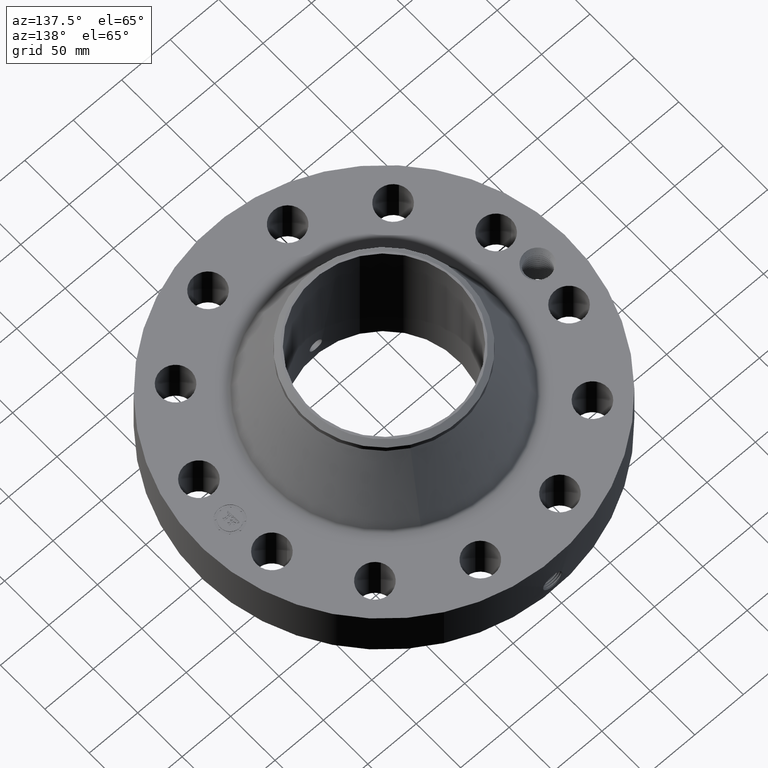
[diagram: clean part render]
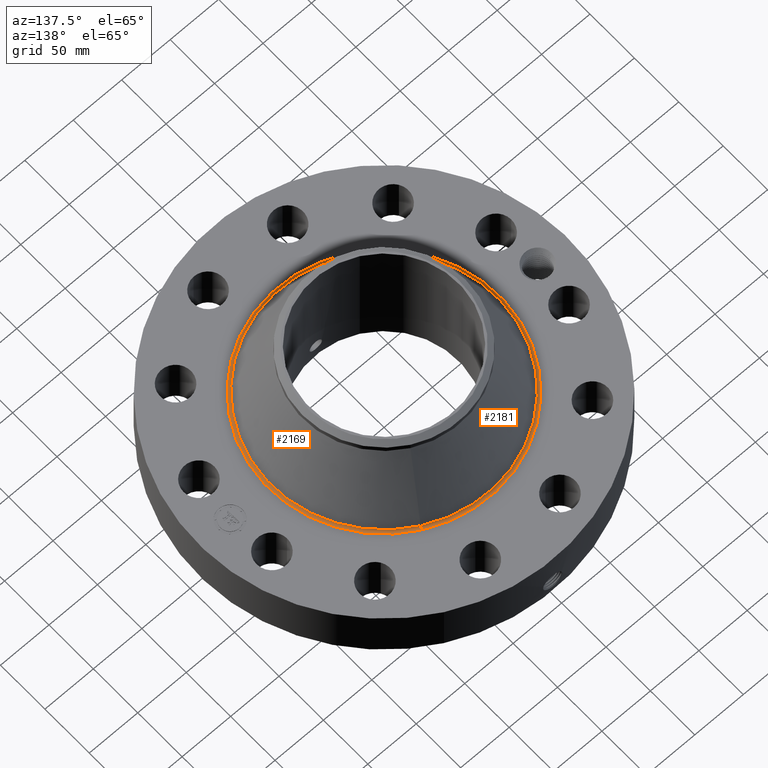
[diagram: same view with one multi-face feature highlighted, each face labeled with its STEP entity id]
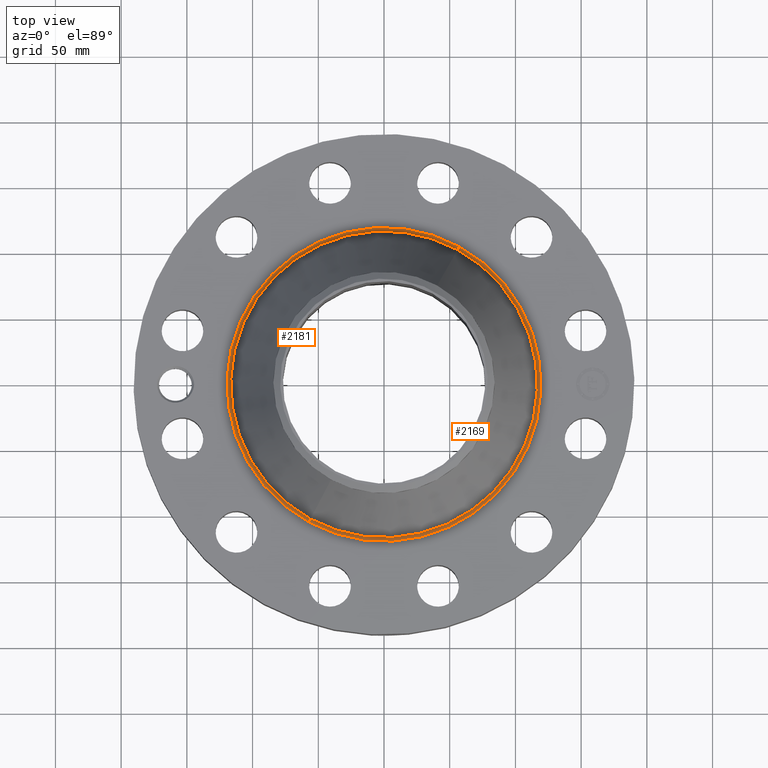
[diagram: same view with one multi-face feature highlighted, each face labeled with its STEP entity id]
A machine part, auxiliary view. The highlighted faces form ONE feature: a constant-radius fillet chain: 2 tangent blend faces with common blend radius 3.048 mm. The faces share edges in the B-rep.
A second angle (top view) of the same feature is appended — it is thin or edge-on in the first view.
Their STEP definitions:
[1] entity #2169 (Torus):
#656=AXIS2_PLACEMENT_3D('Circle Axis2P3D',#654,#655,$) ;
#2142=AXIS2_PLACEMENT_3D('Torus Axis2P3D',#2139,#2140,#2141) ;
#2146=AXIS2_PLACEMENT_3D('Circle Axis2P3D',#2144,#2145,$) ;
#2153=AXIS2_PLACEMENT_3D('Circle Axis2P3D',#2151,#2152,$) ;
#2160=AXIS2_PLACEMENT_3D('Circle Axis2P3D',#2158,#2159,$) ;
#649=CARTESIAN_POINT('Vertex',(-2.25457495333,-4.12697176976,2.44000000001)) ;
#651=CARTESIAN_POINT('Vertex',(2.25457495333,4.12697176976,2.44000000001)) ;
#654=CARTESIAN_POINT('Axis2P3D Location',(0.,0.,2.44000000001)) ;
#2139=CARTESIAN_POINT('Axis2P3D Location',(0.,0.,2.56000000001)) ;
#2144=CARTESIAN_POINT('Axis2P3D Location',(2.25457495333,4.12697176976,2.56000000001)) ;
#2148=CARTESIAN_POINT('Vertex',(2.20209201575,4.03090239691,2.51084497113)) ;
#2151=CARTESIAN_POINT('Axis2P3D Location',(0.,0.,2.51084497113)) ;
#2155=CARTESIAN_POINT('Vertex',(-2.20209201575,-4.03090239691,2.51084497113)) ;
#2158=CARTESIAN_POINT('Axis2P3D Location',(-2.25457495333,-4.12697176976,2.56000000001)) ;
#655=DIRECTION('Axis2P3D Direction',(0.,0.,-0.0393700787402)) ;
#2140=DIRECTION('Axis2P3D Direction',(0.,0.,-0.0393700787402)) ;
#2141=DIRECTION('Axis2P3D XDirection',(-0.0188750212049,-0.0345504945626,0.)) ;
#2145=DIRECTION('Axis2P3D Direction',(-0.0345504945626,0.0188750212049,0.)) ;
#2152=DIRECTION('Axis2P3D Direction',(0.,0.,-0.0393700787402)) ;
#2159=DIRECTION('Axis2P3D Direction',(0.0345504945626,-0.0188750212049,0.)) ;
#2164=ORIENTED_EDGE('',*,*,#658,.F.) ;
#2165=ORIENTED_EDGE('',*,*,#2150,.T.) ;
#2166=ORIENTED_EDGE('',*,*,#2157,.T.) ;
#2167=ORIENTED_EDGE('',*,*,#2162,.F.) ;
#2169=ADVANCED_FACE('PartBody',(#2168),#2143,.F.) ;
#657=CIRCLE('generated circle',#656,4.70265926988) ;
#2147=CIRCLE('generated circle',#2146,0.12) ;
#2154=CIRCLE('generated circle',#2153,4.59318880292) ;
#2161=CIRCLE('generated circle',#2160,0.12) ;
#2143=TOROIDAL_SURFACE('homeo Torus',#2142,4.70265926988,0.12) ;
#658=EDGE_CURVE('',#652,#650,#657,.T.) ;
#2150=EDGE_CURVE('',#652,#2149,#2147,.T.) ;
#2157=EDGE_CURVE('',#2149,#2156,#2154,.T.) ;
#2162=EDGE_CURVE('',#650,#2156,#2161,.T.) ;
#2163=EDGE_LOOP('',(#2164,#2165,#2166,#2167)) ;
#2168=FACE_OUTER_BOUND('',#2163,.T.) ;
#650=VERTEX_POINT('',#649) ;
#652=VERTEX_POINT('',#651) ;
#2149=VERTEX_POINT('',#2148) ;
#2156=VERTEX_POINT('',#2155) ;
[2] entity #2181 (Torus):
#647=AXIS2_PLACEMENT_3D('Circle Axis2P3D',#645,#646,$) ;
#2142=AXIS2_PLACEMENT_3D('Torus Axis2P3D',#2139,#2140,#2141) ;
#2146=AXIS2_PLACEMENT_3D('Circle Axis2P3D',#2144,#2145,$) ;
#2160=AXIS2_PLACEMENT_3D('Circle Axis2P3D',#2158,#2159,$) ;
#2172=AXIS2_PLACEMENT_3D('Circle Axis2P3D',#2170,#2171,$) ;
#645=CARTESIAN_POINT('Axis2P3D Location',(0.,0.,2.44000000001)) ;
#649=CARTESIAN_POINT('Vertex',(-2.25457495333,-4.12697176976,2.44000000001)) ;
#651=CARTESIAN_POINT('Vertex',(2.25457495333,4.12697176976,2.44000000001)) ;
#2139=CARTESIAN_POINT('Axis2P3D Location',(0.,0.,2.56000000001)) ;
#2144=CARTESIAN_POINT('Axis2P3D Location',(2.25457495333,4.12697176976,2.56000000001)) ;
#2148=CARTESIAN_POINT('Vertex',(2.20209201575,4.03090239691,2.51084497113)) ;
#2155=CARTESIAN_POINT('Vertex',(-2.20209201575,-4.03090239691,2.51084497113)) ;
#2158=CARTESIAN_POINT('Axis2P3D Location',(-2.25457495333,-4.12697176976,2.56000000001)) ;
#2170=CARTESIAN_POINT('Axis2P3D Location',(0.,0.,2.51084497113)) ;
#646=DIRECTION('Axis2P3D Direction',(0.,0.,-0.0393700787402)) ;
#2140=DIRECTION('Axis2P3D Direction',(0.,0.,-0.0393700787402)) ;
#2141=DIRECTION('Axis2P3D XDirection',(-0.0188750212049,-0.0345504945626,0.)) ;
#2145=DIRECTION('Axis2P3D Direction',(-0.0345504945626,0.0188750212049,0.)) ;
#2159=DIRECTION('Axis2P3D Direction',(0.0345504945626,-0.0188750212049,0.)) ;
#2171=DIRECTION('Axis2P3D Direction',(0.,0.,-0.0393700787402)) ;
#2176=ORIENTED_EDGE('',*,*,#653,.F.) ;
#2177=ORIENTED_EDGE('',*,*,#2162,.T.) ;
#2178=ORIENTED_EDGE('',*,*,#2174,.T.) ;
#2179=ORIENTED_EDGE('',*,*,#2150,.F.) ;
#2181=ADVANCED_FACE('PartBody',(#2180),#2143,.F.) ;
#648=CIRCLE('generated circle',#647,4.70265926988) ;
#2147=CIRCLE('generated circle',#2146,0.12) ;
#2161=CIRCLE('generated circle',#2160,0.12) ;
#2173=CIRCLE('generated circle',#2172,4.59318880292) ;
#2143=TOROIDAL_SURFACE('homeo Torus',#2142,4.70265926988,0.12) ;
#653=EDGE_CURVE('',#650,#652,#648,.T.) ;
#2150=EDGE_CURVE('',#652,#2149,#2147,.T.) ;
#2162=EDGE_CURVE('',#650,#2156,#2161,.T.) ;
#2174=EDGE_CURVE('',#2156,#2149,#2173,.T.) ;
#2175=EDGE_LOOP('',(#2176,#2177,#2178,#2179)) ;
#2180=FACE_OUTER_BOUND('',#2175,.T.) ;
#650=VERTEX_POINT('',#649) ;
#652=VERTEX_POINT('',#651) ;
#2149=VERTEX_POINT('',#2148) ;
#2156=VERTEX_POINT('',#2155) ;